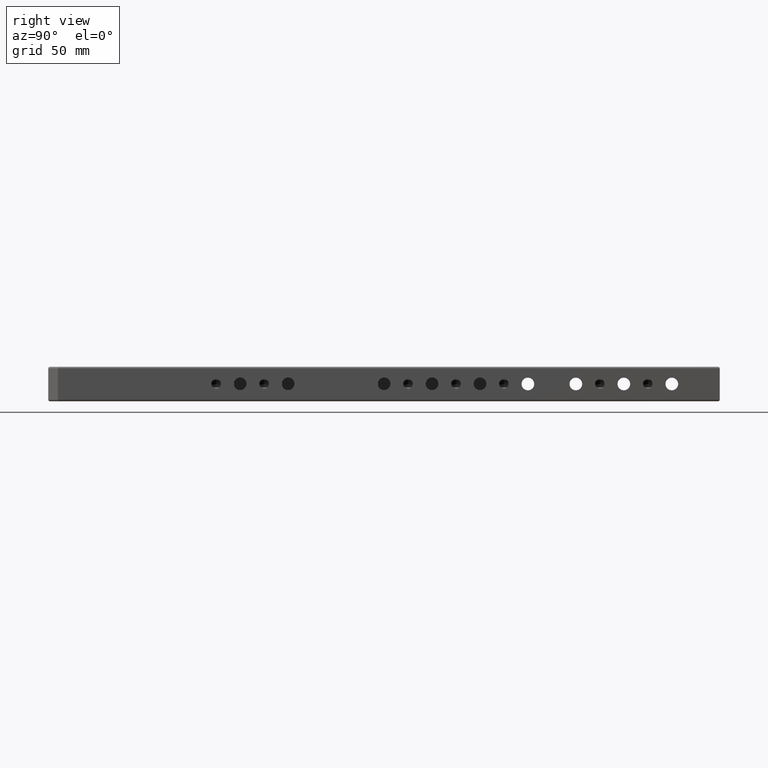
[diagram: clean part render]
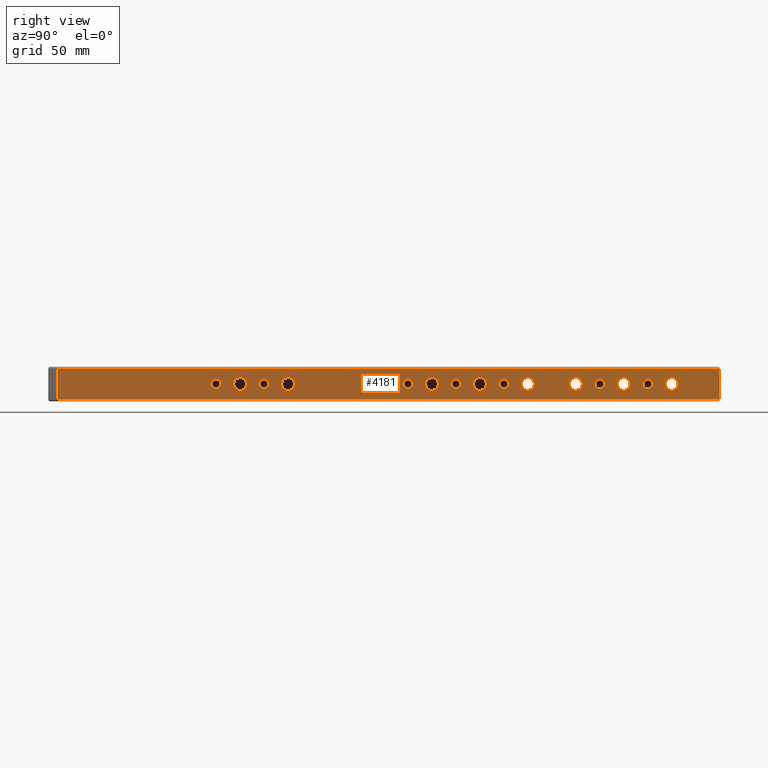
[diagram: same view with one face highlighted and labeled with its STEP entity id]
A machine part, right view. The second image highlights one B-rep face of the part: STEP entity #4181.
In plain terms, the highlighted planar face has unit normal (-1, 0, 0).
Its self-contained STEP definition (entity closure, byte-faithful):
#23 = VERTEX_POINT ( 'NONE', #4355 ) ;
#51 = CARTESIAN_POINT ( 'NONE',  ( 149.9999999999999700, 300.0000000000000000, 5.699999999999993100 ) ) ;
#54 = VERTEX_POINT ( 'NONE', #1582 ) ;
#62 = AXIS2_PLACEMENT_3D ( 'NONE', #2554, #5759, #3001 ) ;
#68 = ORIENTED_EDGE ( 'NONE', *, *, #2594, .T. ) ;
#154 = CARTESIAN_POINT ( 'NONE',  ( 150.0000000000000000, 312.5000000000000000, 6.500000000000037300 ) ) ;
#157 = AXIS2_PLACEMENT_3D ( 'NONE', #1903, #1445, #4172 ) ;
#196 = DIRECTION ( 'NONE',  ( -1.000000000000000000, -0.0000000000000000000, -0.0000000000000000000 ) ) ;
#206 = ORIENTED_EDGE ( 'NONE', *, *, #4019, .F. ) ;
#209 = ORIENTED_EDGE ( 'NONE', *, *, #2279, .F. ) ;
#238 = DIRECTION ( 'NONE',  ( -1.000000000000000000, -0.0000000000000000000, -0.0000000000000000000 ) ) ;
#242 = CARTESIAN_POINT ( 'NONE',  ( 150.0000000000000000, 212.5000000000000000, 11.50000000000002800 ) ) ;
#246 = AXIS2_PLACEMENT_3D ( 'NONE', #2142, #5347, #2598 ) ;
#250 = AXIS2_PLACEMENT_3D ( 'NONE', #1822, #5027, #2283 ) ;
#251 = EDGE_LOOP ( 'NONE', ( #4941, #3325 ) ) ;
#286 = ORIENTED_EDGE ( 'NONE', *, *, #4321, .T. ) ;
#327 = AXIS2_PLACEMENT_3D ( 'NONE', #1460, #4662, #1918 ) ;
#374 = DIRECTION ( 'NONE',  ( 0.0000000000000000000, 0.0000000000000000000, 1.000000000000000000 ) ) ;
#386 = VERTEX_POINT ( 'NONE', #4977 ) ;
#402 = DIRECTION ( 'NONE',  ( 1.000000000000000000, -0.0000000000000000000, -0.0000000000000000000 ) ) ;
#407 = CIRCLE ( 'NONE', #3595, 3.299999999999997200 ) ;
#423 = VERTEX_POINT ( 'NONE', #4145 ) ;
#453 = CARTESIAN_POINT ( 'NONE',  ( 149.9999999999999700, 274.9999999999999400, 12.29999999999993700 ) ) ;
#509 = VERTEX_POINT ( 'NONE', #4301 ) ;
#521 = EDGE_CURVE ( 'NONE', #423, #4263, #3108, .T. ) ;
#552 = AXIS2_PLACEMENT_3D ( 'NONE', #3950, #1234, #4417 ) ;
#565 = VERTEX_POINT ( 'NONE', #4814 ) ;
#576 = CARTESIAN_POINT ( 'NONE',  ( 150.0000000000000000, 112.4999999999999900, 9.000000000000010700 ) ) ;
#581 = CARTESIAN_POINT ( 'NONE',  ( 149.9999999999999700, 274.9999999999999400, 8.999999999999966200 ) ) ;
#599 = ORIENTED_EDGE ( 'NONE', *, *, #4464, .F. ) ;
#617 = CIRCLE ( 'NONE', #3041, 3.299999999999997200 ) ;
#620 = EDGE_CURVE ( 'NONE', #565, #1995, #2398, .T. ) ;
#629 = CARTESIAN_POINT ( 'NONE',  ( 150.0000000000000000, 125.0000000000000000, 8.999999999999987600 ) ) ;
#659 = VERTEX_POINT ( 'NONE', #3487 ) ;
#662 = EDGE_CURVE ( 'NONE', #4861, #2096, #1046, .T. ) ;
#712 = FACE_BOUND ( 'NONE', #4881, .T. ) ;
#727 = EDGE_CURVE ( 'NONE', #784, #3575, #617, .T. ) ;
#734 = AXIS2_PLACEMENT_3D ( 'NONE', #4140, #1409, #4607 ) ;
#756 = CIRCLE ( 'NONE', #4069, 3.299999999999969600 ) ;
#776 = CARTESIAN_POINT ( 'NONE',  ( 149.9999999999999700, 325.0000000000000000, 8.999999999999962700 ) ) ;
#784 = VERTEX_POINT ( 'NONE', #4540 ) ;
#826 = CARTESIAN_POINT ( 'NONE',  ( 150.0000000000000000, 100.0000000000000000, 8.999999999999989300 ) ) ;
#837 = AXIS2_PLACEMENT_3D ( 'NONE', #4253, #1530, #4731 ) ;
#863 = FACE_BOUND ( 'NONE', #251, .T. ) ;
#874 = VERTEX_POINT ( 'NONE', #2249 ) ;
#910 = CARTESIAN_POINT ( 'NONE',  ( 150.0000000000000000, 312.5000000000000000, 11.50000000000004100 ) ) ;
#911 = CARTESIAN_POINT ( 'NONE',  ( 150.0000000000000000, 175.0000000000000000, 8.999999999999976900 ) ) ;
#912 = AXIS2_PLACEMENT_3D ( 'NONE', #2139, #5345, #2595 ) ;
#934 = AXIS2_PLACEMENT_3D ( 'NONE', #5405, #2657, #5873 ) ;
#937 = EDGE_CURVE ( 'NONE', #954, #3538, #3883, .T. ) ;
#941 = AXIS2_PLACEMENT_3D ( 'NONE', #4682, #1934, #5144 ) ;
#954 = VERTEX_POINT ( 'NONE', #2628 ) ;
#994 = CARTESIAN_POINT ( 'NONE',  ( 150.0000000000000000, 212.5000000000000000, 9.000000000000024900 ) ) ;
#1000 = CARTESIAN_POINT ( 'NONE',  ( 149.9999999999999700, 274.9999999999999400, 5.699999999999996600 ) ) ;
#1003 = AXIS2_PLACEMENT_3D ( 'NONE', #2913, #196, #3369 ) ;
#1011 = FACE_BOUND ( 'NONE', #1738, .T. ) ;
#1021 = EDGE_LOOP ( 'NONE', ( #5488, #2012, #4229, #1387 ) ) ;
#1028 = DIRECTION ( 'NONE',  ( 0.0000000000000000000, 0.0000000000000000000, -1.000000000000000000 ) ) ;
#1037 = DIRECTION ( 'NONE',  ( 0.0000000000000000000, 0.0000000000000000000, 1.000000000000000000 ) ) ;
#1042 = LINE ( 'NONE', #5486, #5909 ) ;
#1046 = CIRCLE ( 'NONE', #912, 2.500000000000002200 ) ;
#1082 = DIRECTION ( 'NONE',  ( 0.0000000000000000000, 0.0000000000000000000, 1.000000000000000000 ) ) ;
#1087 = ORIENTED_EDGE ( 'NONE', *, *, #1308, .T. ) ;
#1105 = CIRCLE ( 'NONE', #5644, 2.500000000000002200 ) ;
#1120 = AXIS2_PLACEMENT_3D ( 'NONE', #994, #4177, #1452 ) ;
#1137 = VERTEX_POINT ( 'NONE', #3670 ) ;
#1157 = CARTESIAN_POINT ( 'NONE',  ( 150.0000000000000000, 224.9999999999999700, 8.999999999999973400 ) ) ;
#1170 = EDGE_LOOP ( 'NONE', ( #5234, #3836 ) ) ;
#1175 = AXIS2_PLACEMENT_3D ( 'NONE', #4319, #1588, #4792 ) ;
#1223 = CIRCLE ( 'NONE', #62, 3.299999999999997200 ) ;
#1227 = VERTEX_POINT ( 'NONE', #3563 ) ;
#1234 = DIRECTION ( 'NONE',  ( 1.000000000000000000, -0.0000000000000000000, -0.0000000000000000000 ) ) ;
#1249 = DIRECTION ( 'NONE',  ( 0.0000000000000000000, 0.0000000000000000000, 1.000000000000000000 ) ) ;
#1259 = CARTESIAN_POINT ( 'NONE',  ( 150.0000000000000000, 112.4999999999999900, 11.50000000000000000 ) ) ;
#1275 = CARTESIAN_POINT ( 'NONE',  ( 150.0000000000000000, 125.0000000000000000, 5.699999999999989500 ) ) ;
#1307 = CARTESIAN_POINT ( 'NONE',  ( 150.0000000000000000, 237.5000000000000000, 11.50000000000002800 ) ) ;
#1308 = EDGE_CURVE ( 'NONE', #874, #5198, #5122, .T. ) ;
#1315 = VERTEX_POINT ( 'NONE', #1786 ) ;
#1320 = DIRECTION ( 'NONE',  ( -1.000000000000000000, -0.0000000000000000000, -0.0000000000000000000 ) ) ;
#1360 = DIRECTION ( 'NONE',  ( 1.000000000000000000, -0.0000000000000000000, -0.0000000000000000000 ) ) ;
#1361 = DIRECTION ( 'NONE',  ( 1.000000000000000000, -0.0000000000000000000, -0.0000000000000000000 ) ) ;
#1370 = VERTEX_POINT ( 'NONE', #453 ) ;
#1378 = DIRECTION ( 'NONE',  ( 0.0000000000000000000, 0.0000000000000000000, 1.000000000000000000 ) ) ;
#1387 = ORIENTED_EDGE ( 'NONE', *, *, #3137, .T. ) ;
#1394 = EDGE_CURVE ( 'NONE', #659, #3223, #3596, .T. ) ;
#1400 = AXIS2_PLACEMENT_3D ( 'NONE', #629, #3806, #1082 ) ;
#1404 = VECTOR ( 'NONE', #2793, 1000.000000000000000 ) ;
#1409 = DIRECTION ( 'NONE',  ( -1.000000000000000000, -0.0000000000000000000, -0.0000000000000000000 ) ) ;
#1429 = EDGE_CURVE ( 'NONE', #4003, #1995, #2393, .T. ) ;
#1445 = DIRECTION ( 'NONE',  ( -1.000000000000000000, -0.0000000000000000000, -0.0000000000000000000 ) ) ;
#1452 = DIRECTION ( 'NONE',  ( 0.0000000000000000000, 0.0000000000000000000, -1.000000000000000000 ) ) ;
#1460 = CARTESIAN_POINT ( 'NONE',  ( 150.0000000000000000, 312.5000000000000000, 9.000000000000039100 ) ) ;
#1473 = EDGE_CURVE ( 'NONE', #1227, #1523, #4135, .T. ) ;
#1523 = VERTEX_POINT ( 'NONE', #2100 ) ;
#1530 = DIRECTION ( 'NONE',  ( -1.000000000000000000, -0.0000000000000000000, -0.0000000000000000000 ) ) ;
#1578 = PLANE ( 'NONE',  #3827 ) ;
#1580 = AXIS2_PLACEMENT_3D ( 'NONE', #776, #3957, #1249 ) ;
#1582 = CARTESIAN_POINT ( 'NONE',  ( 150.0000000000000000, 87.50000000000000000, 11.49999999999999600 ) ) ;
#1588 = DIRECTION ( 'NONE',  ( 1.000000000000000000, -0.0000000000000000000, -0.0000000000000000000 ) ) ;
#1592 = ORIENTED_EDGE ( 'NONE', *, *, #1473, .F. ) ;
#1600 = ORIENTED_EDGE ( 'NONE', *, *, #1394, .T. ) ;
#1614 = DIRECTION ( 'NONE',  ( 0.0000000000000000000, 0.0000000000000000000, 1.000000000000000000 ) ) ;
#1631 = CARTESIAN_POINT ( 'NONE',  ( 149.9999999999999700, 325.0000000000000000, 5.699999999999993100 ) ) ;
#1660 = EDGE_LOOP ( 'NONE', ( #4339, #3685 ) ) ;
#1690 = EDGE_LOOP ( 'NONE', ( #2721, #2760 ) ) ;
#1691 = EDGE_LOOP ( 'NONE', ( #4810, #4170 ) ) ;
#1699 = VERTEX_POINT ( 'NONE', #1631 ) ;
#1738 = EDGE_LOOP ( 'NONE', ( #3860, #599 ) ) ;
#1743 = CARTESIAN_POINT ( 'NONE',  ( 150.0000000000000000, 350.0000000000000000, 18.00000000000000000 ) ) ;
#1745 = CARTESIAN_POINT ( 'NONE',  ( 150.0000000000000000, 224.9999999999999700, 8.999999999999973400 ) ) ;
#1786 = CARTESIAN_POINT ( 'NONE',  ( 150.0000000000000000, 175.0000000000000000, 12.29999999999997400 ) ) ;
#1793 = CIRCLE ( 'NONE', #250, 2.500000000000002200 ) ;
#1822 = CARTESIAN_POINT ( 'NONE',  ( 150.0000000000000000, 237.5000000000000000, 9.000000000000026600 ) ) ;
#1854 = CARTESIAN_POINT ( 'NONE',  ( 150.0000000000000000, 350.0000000000000000, 1.000000000000000900 ) ) ;
#1903 = CARTESIAN_POINT ( 'NONE',  ( 149.9999999999999700, 300.0000000000000000, 8.999999999999962700 ) ) ;
#1918 = DIRECTION ( 'NONE',  ( 0.0000000000000000000, 0.0000000000000000000, -1.000000000000000000 ) ) ;
#1934 = DIRECTION ( 'NONE',  ( 1.000000000000000000, -0.0000000000000000000, -0.0000000000000000000 ) ) ;
#1937 = FACE_BOUND ( 'NONE', #5166, .T. ) ;
#1995 = VERTEX_POINT ( 'NONE', #1854 ) ;
#2012 = ORIENTED_EDGE ( 'NONE', *, *, #620, .T. ) ;
#2032 = DIRECTION ( 'NONE',  ( 0.0000000000000000000, 0.0000000000000000000, 1.000000000000000000 ) ) ;
#2070 = FACE_BOUND ( 'NONE', #2445, .T. ) ;
#2096 = VERTEX_POINT ( 'NONE', #242 ) ;
#2098 = EDGE_CURVE ( 'NONE', #3575, #784, #2415, .T. ) ;
#2100 = CARTESIAN_POINT ( 'NONE',  ( 150.0000000000000000, 187.5000000000000000, 11.50000000000002500 ) ) ;
#2115 = EDGE_CURVE ( 'NONE', #5237, #509, #5777, .T. ) ;
#2139 = CARTESIAN_POINT ( 'NONE',  ( 150.0000000000000000, 212.5000000000000000, 9.000000000000024900 ) ) ;
#2142 = CARTESIAN_POINT ( 'NONE',  ( 150.0000000000000000, 175.0000000000000000, 8.999999999999976900 ) ) ;
#2147 = AXIS2_PLACEMENT_3D ( 'NONE', #4078, #1361, #4544 ) ;
#2166 = CARTESIAN_POINT ( 'NONE',  ( 150.0000000000000000, 312.5000000000000000, 9.000000000000039100 ) ) ;
#2178 = CIRCLE ( 'NONE', #552, 2.500000000000002200 ) ;
#2206 = DIRECTION ( 'NONE',  ( 0.0000000000000000000, 0.0000000000000000000, 1.000000000000000000 ) ) ;
#2222 = FACE_BOUND ( 'NONE', #5109, .T. ) ;
#2243 = VERTEX_POINT ( 'NONE', #1259 ) ;
#2249 = CARTESIAN_POINT ( 'NONE',  ( 150.0000000000000000, 199.9999999999999700, 12.29999999999997200 ) ) ;
#2255 = CIRCLE ( 'NONE', #837, 3.299999999999997200 ) ;
#2279 = EDGE_CURVE ( 'NONE', #386, #2243, #5701, .T. ) ;
#2283 = DIRECTION ( 'NONE',  ( 0.0000000000000000000, 0.0000000000000000000, -1.000000000000000000 ) ) ;
#2326 = CIRCLE ( 'NONE', #246, 3.299999999999997200 ) ;
#2328 = CIRCLE ( 'NONE', #1003, 3.299999999999997200 ) ;
#2332 = AXIS2_PLACEMENT_3D ( 'NONE', #2347, #5547, #2797 ) ;
#2347 = CARTESIAN_POINT ( 'NONE',  ( 150.0000000000000000, 87.50000000000000000, 9.000000000000007100 ) ) ;
#2363 = FACE_BOUND ( 'NONE', #5270, .T. ) ;
#2385 = CARTESIAN_POINT ( 'NONE',  ( 150.0000000000000000, 224.9999999999999700, 12.29999999999997100 ) ) ;
#2393 = LINE ( 'NONE', #1743, #4689 ) ;
#2398 = LINE ( 'NONE', #2563, #5919 ) ;
#2415 = CIRCLE ( 'NONE', #3465, 3.299999999999997200 ) ;
#2426 = CIRCLE ( 'NONE', #327, 2.500000000000002200 ) ;
#2440 = ORIENTED_EDGE ( 'NONE', *, *, #2115, .T. ) ;
#2445 = EDGE_LOOP ( 'NONE', ( #3475, #3627 ) ) ;
#2457 = EDGE_CURVE ( 'NONE', #23, #54, #5773, .T. ) ;
#2501 = CIRCLE ( 'NONE', #1400, 3.299999999999997200 ) ;
#2541 = CARTESIAN_POINT ( 'NONE',  ( 150.0000000000000000, 187.5000000000000000, 9.000000000000021300 ) ) ;
#2547 = CARTESIAN_POINT ( 'NONE',  ( 149.9999999999999700, 249.9999999999999700, 8.999999999999971600 ) ) ;
#2554 = CARTESIAN_POINT ( 'NONE',  ( 150.0000000000000000, 199.9999999999999700, 8.999999999999975100 ) ) ;
#2563 = CARTESIAN_POINT ( 'NONE',  ( 150.0000000000000000, 0.0000000000000000000, 1.000000000000000900 ) ) ;
#2590 = AXIS2_PLACEMENT_3D ( 'NONE', #2541, #5745, #2989 ) ;
#2594 = EDGE_CURVE ( 'NONE', #509, #5237, #2328, .T. ) ;
#2595 = DIRECTION ( 'NONE',  ( 0.0000000000000000000, 0.0000000000000000000, -1.000000000000000000 ) ) ;
#2598 = DIRECTION ( 'NONE',  ( 0.0000000000000000000, 0.0000000000000000000, 1.000000000000000000 ) ) ;
#2617 = DIRECTION ( 'NONE',  ( 0.0000000000000000000, 0.0000000000000000000, -1.000000000000000000 ) ) ;
#2628 = CARTESIAN_POINT ( 'NONE',  ( 150.0000000000000000, 100.0000000000000000, 5.699999999999991300 ) ) ;
#2640 = ORIENTED_EDGE ( 'NONE', *, *, #727, .T. ) ;
#2647 = VERTEX_POINT ( 'NONE', #1000 ) ;
#2657 = DIRECTION ( 'NONE',  ( -1.000000000000000000, -0.0000000000000000000, -0.0000000000000000000 ) ) ;
#2672 = CARTESIAN_POINT ( 'NONE',  ( 150.0000000000000000, 199.9999999999999700, 8.999999999999975100 ) ) ;
#2685 = EDGE_CURVE ( 'NONE', #1370, #2647, #4462, .T. ) ;
#2721 = ORIENTED_EDGE ( 'NONE', *, *, #4888, .F. ) ;
#2724 = ORIENTED_EDGE ( 'NONE', *, *, #3395, .T. ) ;
#2729 = ORIENTED_EDGE ( 'NONE', *, *, #662, .F. ) ;
#2760 = ORIENTED_EDGE ( 'NONE', *, *, #3326, .F. ) ;
#2780 = EDGE_LOOP ( 'NONE', ( #286, #3419 ) ) ;
#2793 = DIRECTION ( 'NONE',  ( 0.0000000000000000000, 0.0000000000000000000, -1.000000000000000000 ) ) ;
#2797 = DIRECTION ( 'NONE',  ( 0.0000000000000000000, 0.0000000000000000000, -1.000000000000000000 ) ) ;
#2913 = CARTESIAN_POINT ( 'NONE',  ( 149.9999999999999700, 249.9999999999999700, 8.999999999999971600 ) ) ;
#2927 = CARTESIAN_POINT ( 'NONE',  ( 150.0000000000000000, 0.0000000000000000000, 18.00000000000000000 ) ) ;
#2947 = EDGE_CURVE ( 'NONE', #5922, #4436, #2178, .T. ) ;
#2956 = CARTESIAN_POINT ( 'NONE',  ( 149.9999999999999700, 325.0000000000000000, 8.999999999999962700 ) ) ;
#2966 = EDGE_CURVE ( 'NONE', #1315, #1137, #2326, .T. ) ;
#2977 = CARTESIAN_POINT ( 'NONE',  ( 150.0000000000000000, 125.0000000000000000, 12.29999999999998500 ) ) ;
#2989 = DIRECTION ( 'NONE',  ( 0.0000000000000000000, 0.0000000000000000000, -1.000000000000000000 ) ) ;
#2994 = DIRECTION ( 'NONE',  ( 0.0000000000000000000, 0.0000000000000000000, 1.000000000000000000 ) ) ;
#3001 = DIRECTION ( 'NONE',  ( 0.0000000000000000000, 0.0000000000000000000, 1.000000000000000000 ) ) ;
#3003 = VERTEX_POINT ( 'NONE', #1275 ) ;
#3024 = EDGE_CURVE ( 'NONE', #3003, #5409, #407, .T. ) ;
#3041 = AXIS2_PLACEMENT_3D ( 'NONE', #1745, #4949, #2206 ) ;
#3066 = EDGE_CURVE ( 'NONE', #1523, #1227, #4840, .T. ) ;
#3108 = CIRCLE ( 'NONE', #1175, 2.500000000000002200 ) ;
#3121 = CARTESIAN_POINT ( 'NONE',  ( 150.0000000000000000, 112.4999999999999900, 9.000000000000010700 ) ) ;
#3137 = EDGE_CURVE ( 'NONE', #4003, #3437, #1042, .T. ) ;
#3144 = FACE_BOUND ( 'NONE', #4228, .T. ) ;
#3170 = EDGE_CURVE ( 'NONE', #3223, #659, #4538, .T. ) ;
#3223 = VERTEX_POINT ( 'NONE', #51 ) ;
#3283 = FACE_BOUND ( 'NONE', #1691, .T. ) ;
#3285 = DIRECTION ( 'NONE',  ( 0.0000000000000000000, 0.0000000000000000000, 1.000000000000000000 ) ) ;
#3325 = ORIENTED_EDGE ( 'NONE', *, *, #937, .T. ) ;
#3326 = EDGE_CURVE ( 'NONE', #3468, #5814, #1105, .T. ) ;
#3369 = DIRECTION ( 'NONE',  ( 0.0000000000000000000, 0.0000000000000000000, 1.000000000000000000 ) ) ;
#3395 = EDGE_CURVE ( 'NONE', #2647, #1370, #5543, .T. ) ;
#3400 = VERTEX_POINT ( 'NONE', #3569 ) ;
#3418 = DIRECTION ( 'NONE',  ( 0.0000000000000000000, 0.0000000000000000000, 1.000000000000000000 ) ) ;
#3419 = ORIENTED_EDGE ( 'NONE', *, *, #5371, .T. ) ;
#3423 = FACE_BOUND ( 'NONE', #1660, .T. ) ;
#3437 = VERTEX_POINT ( 'NONE', #4525 ) ;
#3442 = EDGE_CURVE ( 'NONE', #4263, #423, #4174, .T. ) ;
#3465 = AXIS2_PLACEMENT_3D ( 'NONE', #1157, #4349, #1614 ) ;
#3468 = VERTEX_POINT ( 'NONE', #910 ) ;
#3475 = ORIENTED_EDGE ( 'NONE', *, *, #4086, .T. ) ;
#3487 = CARTESIAN_POINT ( 'NONE',  ( 149.9999999999999700, 300.0000000000000000, 12.29999999999993300 ) ) ;
#3508 = EDGE_CURVE ( 'NONE', #2096, #4861, #4380, .T. ) ;
#3538 = VERTEX_POINT ( 'NONE', #5574 ) ;
#3551 = DIRECTION ( 'NONE',  ( -1.000000000000000000, -0.0000000000000000000, -0.0000000000000000000 ) ) ;
#3563 = CARTESIAN_POINT ( 'NONE',  ( 150.0000000000000000, 187.5000000000000000, 6.500000000000019500 ) ) ;
#3569 = CARTESIAN_POINT ( 'NONE',  ( 149.9999999999999700, 325.0000000000000000, 12.29999999999993300 ) ) ;
#3573 = DIRECTION ( 'NONE',  ( 0.0000000000000000000, 0.0000000000000000000, -1.000000000000000000 ) ) ;
#3575 = VERTEX_POINT ( 'NONE', #2385 ) ;
#3595 = AXIS2_PLACEMENT_3D ( 'NONE', #4033, #1320, #4499 ) ;
#3596 = CIRCLE ( 'NONE', #157, 3.299999999999969600 ) ;
#3627 = ORIENTED_EDGE ( 'NONE', *, *, #3024, .T. ) ;
#3670 = CARTESIAN_POINT ( 'NONE',  ( 150.0000000000000000, 175.0000000000000000, 5.699999999999979700 ) ) ;
#3681 = CARTESIAN_POINT ( 'NONE',  ( 150.0000000000000000, 212.5000000000000000, 6.500000000000023100 ) ) ;
#3685 = ORIENTED_EDGE ( 'NONE', *, *, #4913, .F. ) ;
#3687 = ORIENTED_EDGE ( 'NONE', *, *, #2685, .T. ) ;
#3726 = ORIENTED_EDGE ( 'NONE', *, *, #3508, .F. ) ;
#3750 = DIRECTION ( 'NONE',  ( 1.000000000000000000, -0.0000000000000000000, -0.0000000000000000000 ) ) ;
#3763 = DIRECTION ( 'NONE',  ( -1.000000000000000000, -0.0000000000000000000, -0.0000000000000000000 ) ) ;
#3806 = DIRECTION ( 'NONE',  ( -1.000000000000000000, -0.0000000000000000000, -0.0000000000000000000 ) ) ;
#3827 = AXIS2_PLACEMENT_3D ( 'NONE', #2927, #4786, #2032 ) ;
#3836 = ORIENTED_EDGE ( 'NONE', *, *, #521, .F. ) ;
#3860 = ORIENTED_EDGE ( 'NONE', *, *, #2947, .F. ) ;
#3883 = CIRCLE ( 'NONE', #5096, 3.299999999999997200 ) ;
#3911 = CARTESIAN_POINT ( 'NONE',  ( 150.0000000000000000, 287.5000000000000000, 6.500000000000030200 ) ) ;
#3922 = AXIS2_PLACEMENT_3D ( 'NONE', #2672, #5397, #3285 ) ;
#3948 = CARTESIAN_POINT ( 'NONE',  ( 149.9999999999999700, 249.9999999999999700, 5.699999999999974400 ) ) ;
#3950 = CARTESIAN_POINT ( 'NONE',  ( 150.0000000000000000, 237.5000000000000000, 9.000000000000026600 ) ) ;
#3957 = DIRECTION ( 'NONE',  ( -1.000000000000000000, -0.0000000000000000000, -0.0000000000000000000 ) ) ;
#4003 = VERTEX_POINT ( 'NONE', #4654 ) ;
#4008 = DIRECTION ( 'NONE',  ( -0.0000000000000000000, -0.0000000000000000000, -1.000000000000000000 ) ) ;
#4019 = EDGE_CURVE ( 'NONE', #2243, #386, #4095, .T. ) ;
#4033 = CARTESIAN_POINT ( 'NONE',  ( 150.0000000000000000, 125.0000000000000000, 8.999999999999987600 ) ) ;
#4069 = AXIS2_PLACEMENT_3D ( 'NONE', #2956, #238, #3418 ) ;
#4076 = CARTESIAN_POINT ( 'NONE',  ( 150.0000000000000000, 187.5000000000000000, 9.000000000000021300 ) ) ;
#4078 = CARTESIAN_POINT ( 'NONE',  ( 150.0000000000000000, 287.5000000000000000, 9.000000000000032000 ) ) ;
#4086 = EDGE_CURVE ( 'NONE', #5409, #3003, #2501, .T. ) ;
#4091 = AXIS2_PLACEMENT_3D ( 'NONE', #2547, #5753, #2994 ) ;
#4095 = CIRCLE ( 'NONE', #4573, 2.499999999999988500 ) ;
#4104 = DIRECTION ( 'NONE',  ( -1.000000000000000000, -0.0000000000000000000, -0.0000000000000000000 ) ) ;
#4135 = CIRCLE ( 'NONE', #2590, 2.500000000000002200 ) ;
#4140 = CARTESIAN_POINT ( 'NONE',  ( 149.9999999999999700, 300.0000000000000000, 8.999999999999962700 ) ) ;
#4145 = CARTESIAN_POINT ( 'NONE',  ( 150.0000000000000000, 287.5000000000000000, 11.50000000000003400 ) ) ;
#4170 = ORIENTED_EDGE ( 'NONE', *, *, #5927, .T. ) ;
#4172 = DIRECTION ( 'NONE',  ( 0.0000000000000000000, 0.0000000000000000000, 1.000000000000000000 ) ) ;
#4174 = CIRCLE ( 'NONE', #2147, 2.500000000000002200 ) ;
#4177 = DIRECTION ( 'NONE',  ( 1.000000000000000000, -0.0000000000000000000, -0.0000000000000000000 ) ) ;
#4181 = ADVANCED_FACE ( 'NONE', ( #2222, #2363, #5879, #3423, #1011, #5727, #4506, #3283, #2070, #863, #5585, #4359, #3144, #1937, #712, #5440, #4218 ), #1578, .F. ) ;
#4218 = FACE_OUTER_BOUND ( 'NONE', #1021, .T. ) ;
#4228 = EDGE_LOOP ( 'NONE', ( #68, #2440 ) ) ;
#4229 = ORIENTED_EDGE ( 'NONE', *, *, #1429, .F. ) ;
#4248 = EDGE_CURVE ( 'NONE', #5198, #874, #1223, .T. ) ;
#4253 = CARTESIAN_POINT ( 'NONE',  ( 150.0000000000000000, 100.0000000000000000, 8.999999999999989300 ) ) ;
#4263 = VERTEX_POINT ( 'NONE', #3911 ) ;
#4282 = AXIS2_PLACEMENT_3D ( 'NONE', #3121, #402, #3573 ) ;
#4290 = CIRCLE ( 'NONE', #1580, 3.299999999999969600 ) ;
#4301 = CARTESIAN_POINT ( 'NONE',  ( 149.9999999999999700, 249.9999999999999700, 12.29999999999996900 ) ) ;
#4319 = CARTESIAN_POINT ( 'NONE',  ( 150.0000000000000000, 287.5000000000000000, 9.000000000000032000 ) ) ;
#4321 = EDGE_CURVE ( 'NONE', #3400, #1699, #4290, .T. ) ;
#4339 = ORIENTED_EDGE ( 'NONE', *, *, #2457, .F. ) ;
#4349 = DIRECTION ( 'NONE',  ( -1.000000000000000000, -0.0000000000000000000, -0.0000000000000000000 ) ) ;
#4355 = CARTESIAN_POINT ( 'NONE',  ( 150.0000000000000000, 87.50000000000000000, 6.500000000000019500 ) ) ;
#4359 = FACE_BOUND ( 'NONE', #5376, .T. ) ;
#4380 = CIRCLE ( 'NONE', #1120, 2.500000000000002200 ) ;
#4407 = ORIENTED_EDGE ( 'NONE', *, *, #3170, .T. ) ;
#4417 = DIRECTION ( 'NONE',  ( 0.0000000000000000000, 0.0000000000000000000, -1.000000000000000000 ) ) ;
#4436 = VERTEX_POINT ( 'NONE', #1307 ) ;
#4462 = CIRCLE ( 'NONE', #4759, 3.299999999999969600 ) ;
#4464 = EDGE_CURVE ( 'NONE', #4436, #5922, #1793, .T. ) ;
#4499 = DIRECTION ( 'NONE',  ( 0.0000000000000000000, 0.0000000000000000000, 1.000000000000000000 ) ) ;
#4506 = FACE_BOUND ( 'NONE', #1690, .T. ) ;
#4525 = CARTESIAN_POINT ( 'NONE',  ( 150.0000000000000000, 5.000000000000004400, 16.99999999999999600 ) ) ;
#4534 = ORIENTED_EDGE ( 'NONE', *, *, #3066, .F. ) ;
#4538 = CIRCLE ( 'NONE', #734, 3.299999999999969600 ) ;
#4540 = CARTESIAN_POINT ( 'NONE',  ( 150.0000000000000000, 224.9999999999999700, 5.699999999999976200 ) ) ;
#4542 = DIRECTION ( 'NONE',  ( 0.0000000000000000000, 0.0000000000000000000, -1.000000000000000000 ) ) ;
#4544 = DIRECTION ( 'NONE',  ( 0.0000000000000000000, 0.0000000000000000000, -1.000000000000000000 ) ) ;
#4573 = AXIS2_PLACEMENT_3D ( 'NONE', #576, #3750, #1028 ) ;
#4607 = DIRECTION ( 'NONE',  ( 0.0000000000000000000, 0.0000000000000000000, 1.000000000000000000 ) ) ;
#4654 = CARTESIAN_POINT ( 'NONE',  ( 150.0000000000000000, 350.0000000000000000, 16.99999999999999600 ) ) ;
#4662 = DIRECTION ( 'NONE',  ( 1.000000000000000000, -0.0000000000000000000, -0.0000000000000000000 ) ) ;
#4682 = CARTESIAN_POINT ( 'NONE',  ( 150.0000000000000000, 87.50000000000000000, 9.000000000000007100 ) ) ;
#4689 = VECTOR ( 'NONE', #4008, 1000.000000000000000 ) ;
#4731 = DIRECTION ( 'NONE',  ( 0.0000000000000000000, 0.0000000000000000000, 1.000000000000000000 ) ) ;
#4759 = AXIS2_PLACEMENT_3D ( 'NONE', #581, #3763, #1037 ) ;
#4763 = LINE ( 'NONE', #5546, #1404 ) ;
#4786 = DIRECTION ( 'NONE',  ( -1.000000000000000000, 0.0000000000000000000, 0.0000000000000000000 ) ) ;
#4792 = DIRECTION ( 'NONE',  ( 0.0000000000000000000, 0.0000000000000000000, -1.000000000000000000 ) ) ;
#4810 = ORIENTED_EDGE ( 'NONE', *, *, #2966, .T. ) ;
#4814 = CARTESIAN_POINT ( 'NONE',  ( 150.0000000000000000, 5.000000000000004400, 1.000000000000000900 ) ) ;
#4828 = AXIS2_PLACEMENT_3D ( 'NONE', #911, #4104, #1378 ) ;
#4840 = CIRCLE ( 'NONE', #5755, 2.500000000000002200 ) ;
#4861 = VERTEX_POINT ( 'NONE', #3681 ) ;
#4881 = EDGE_LOOP ( 'NONE', ( #1600, #4407 ) ) ;
#4888 = EDGE_CURVE ( 'NONE', #5814, #3468, #2426, .T. ) ;
#4913 = EDGE_CURVE ( 'NONE', #54, #23, #5939, .T. ) ;
#4941 = ORIENTED_EDGE ( 'NONE', *, *, #5821, .T. ) ;
#4949 = DIRECTION ( 'NONE',  ( -1.000000000000000000, -0.0000000000000000000, -0.0000000000000000000 ) ) ;
#4977 = CARTESIAN_POINT ( 'NONE',  ( 150.0000000000000000, 112.4999999999999900, 6.500000000000023100 ) ) ;
#5027 = DIRECTION ( 'NONE',  ( 1.000000000000000000, -0.0000000000000000000, -0.0000000000000000000 ) ) ;
#5039 = DIRECTION ( 'NONE',  ( -0.0000000000000000000, -1.000000000000000000, -0.0000000000000000000 ) ) ;
#5053 = CIRCLE ( 'NONE', #4828, 3.299999999999997200 ) ;
#5081 = EDGE_LOOP ( 'NONE', ( #1087, #5599 ) ) ;
#5096 = AXIS2_PLACEMENT_3D ( 'NONE', #826, #3551, #374 ) ;
#5109 = EDGE_LOOP ( 'NONE', ( #2729, #3726 ) ) ;
#5122 = CIRCLE ( 'NONE', #3922, 3.299999999999997200 ) ;
#5144 = DIRECTION ( 'NONE',  ( 0.0000000000000000000, 0.0000000000000000000, -1.000000000000000000 ) ) ;
#5166 = EDGE_LOOP ( 'NONE', ( #3687, #2724 ) ) ;
#5170 = ORIENTED_EDGE ( 'NONE', *, *, #2098, .T. ) ;
#5198 = VERTEX_POINT ( 'NONE', #5769 ) ;
#5234 = ORIENTED_EDGE ( 'NONE', *, *, #3442, .F. ) ;
#5237 = VERTEX_POINT ( 'NONE', #3948 ) ;
#5270 = EDGE_LOOP ( 'NONE', ( #1592, #4534 ) ) ;
#5345 = DIRECTION ( 'NONE',  ( 1.000000000000000000, -0.0000000000000000000, -0.0000000000000000000 ) ) ;
#5347 = DIRECTION ( 'NONE',  ( -1.000000000000000000, -0.0000000000000000000, -0.0000000000000000000 ) ) ;
#5367 = DIRECTION ( 'NONE',  ( 1.000000000000000000, -0.0000000000000000000, -0.0000000000000000000 ) ) ;
#5371 = EDGE_CURVE ( 'NONE', #1699, #3400, #756, .T. ) ;
#5376 = EDGE_LOOP ( 'NONE', ( #5170, #2640 ) ) ;
#5397 = DIRECTION ( 'NONE',  ( -1.000000000000000000, -0.0000000000000000000, -0.0000000000000000000 ) ) ;
#5405 = CARTESIAN_POINT ( 'NONE',  ( 149.9999999999999700, 274.9999999999999400, 8.999999999999966200 ) ) ;
#5409 = VERTEX_POINT ( 'NONE', #2977 ) ;
#5440 = FACE_BOUND ( 'NONE', #2780, .T. ) ;
#5468 = CARTESIAN_POINT ( 'NONE',  ( 150.0000000000000000, 237.5000000000000000, 6.500000000000024900 ) ) ;
#5486 = CARTESIAN_POINT ( 'NONE',  ( 150.0000000000000000, 5.000000000000004400, 16.99999999999999600 ) ) ;
#5488 = ORIENTED_EDGE ( 'NONE', *, *, #5750, .T. ) ;
#5543 = CIRCLE ( 'NONE', #934, 3.299999999999969600 ) ;
#5546 = CARTESIAN_POINT ( 'NONE',  ( 150.0000000000000000, 5.000000000000004400, 18.00000000000000000 ) ) ;
#5547 = DIRECTION ( 'NONE',  ( 1.000000000000000000, -0.0000000000000000000, -0.0000000000000000000 ) ) ;
#5574 = CARTESIAN_POINT ( 'NONE',  ( 150.0000000000000000, 100.0000000000000000, 12.29999999999998600 ) ) ;
#5585 = FACE_BOUND ( 'NONE', #5081, .T. ) ;
#5599 = ORIENTED_EDGE ( 'NONE', *, *, #4248, .T. ) ;
#5644 = AXIS2_PLACEMENT_3D ( 'NONE', #2166, #5367, #2617 ) ;
#5701 = CIRCLE ( 'NONE', #4282, 2.499999999999988500 ) ;
#5714 = EDGE_LOOP ( 'NONE', ( #209, #206 ) ) ;
#5727 = FACE_BOUND ( 'NONE', #1170, .T. ) ;
#5745 = DIRECTION ( 'NONE',  ( 1.000000000000000000, -0.0000000000000000000, -0.0000000000000000000 ) ) ;
#5746 = DIRECTION ( 'NONE',  ( 0.0000000000000000000, 1.000000000000000000, 0.0000000000000000000 ) ) ;
#5750 = EDGE_CURVE ( 'NONE', #3437, #565, #4763, .T. ) ;
#5753 = DIRECTION ( 'NONE',  ( -1.000000000000000000, -0.0000000000000000000, -0.0000000000000000000 ) ) ;
#5755 = AXIS2_PLACEMENT_3D ( 'NONE', #4076, #1360, #4542 ) ;
#5759 = DIRECTION ( 'NONE',  ( -1.000000000000000000, -0.0000000000000000000, -0.0000000000000000000 ) ) ;
#5769 = CARTESIAN_POINT ( 'NONE',  ( 150.0000000000000000, 199.9999999999999700, 5.699999999999978000 ) ) ;
#5773 = CIRCLE ( 'NONE', #2332, 2.499999999999988500 ) ;
#5777 = CIRCLE ( 'NONE', #4091, 3.299999999999997200 ) ;
#5814 = VERTEX_POINT ( 'NONE', #154 ) ;
#5821 = EDGE_CURVE ( 'NONE', #3538, #954, #2255, .T. ) ;
#5873 = DIRECTION ( 'NONE',  ( 0.0000000000000000000, 0.0000000000000000000, 1.000000000000000000 ) ) ;
#5879 = FACE_BOUND ( 'NONE', #5714, .T. ) ;
#5909 = VECTOR ( 'NONE', #5039, 1000.000000000000000 ) ;
#5919 = VECTOR ( 'NONE', #5746, 1000.000000000000000 ) ;
#5922 = VERTEX_POINT ( 'NONE', #5468 ) ;
#5927 = EDGE_CURVE ( 'NONE', #1137, #1315, #5053, .T. ) ;
#5939 = CIRCLE ( 'NONE', #941, 2.499999999999988500 ) ;